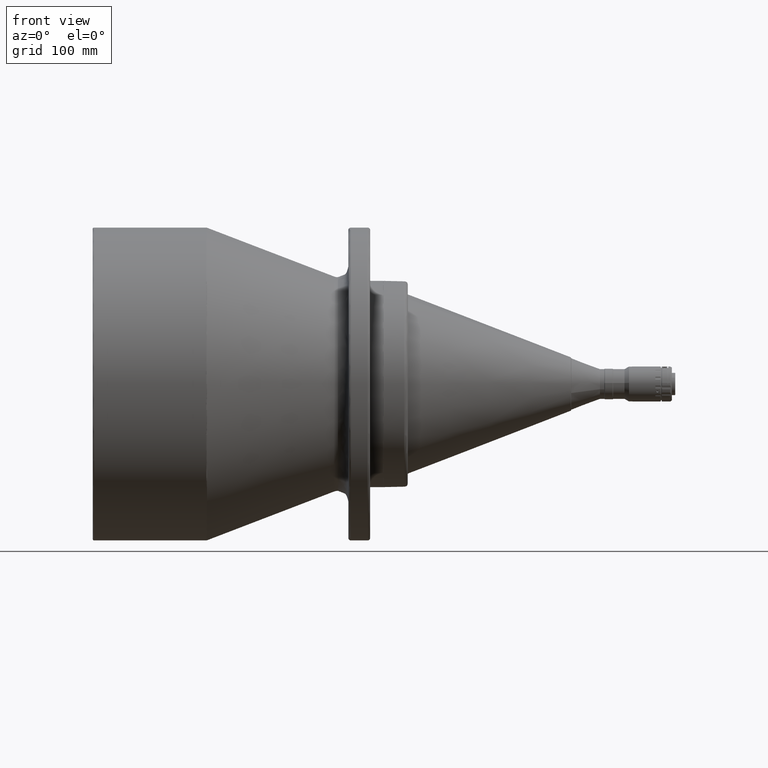
[diagram: clean part render]
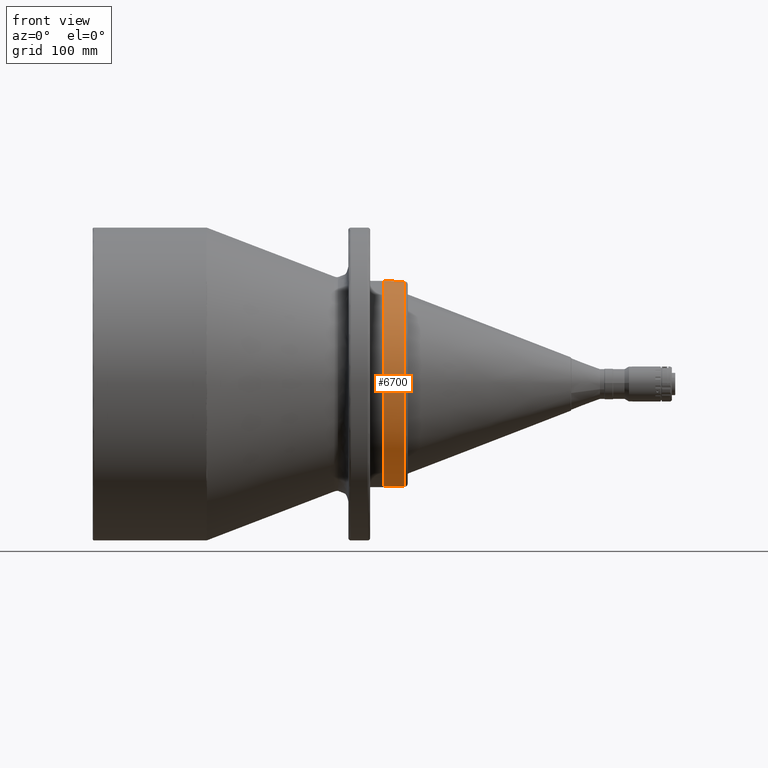
[diagram: same view with one face highlighted and labeled with its STEP entity id]
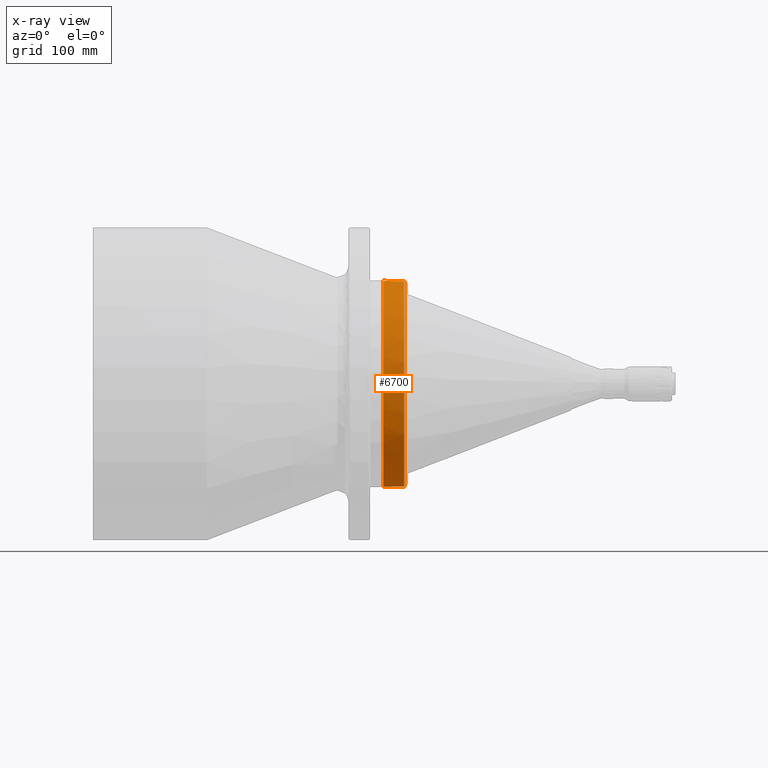
[diagram: x-ray of the same camera — body ghosted, the highlighted face saturated]
A machine part, front view. The second image highlights one B-rep face of the part: STEP entity #6700.
The next image is the same camera in x-ray: the body ghosted, the highlighted face saturated — about 0% of this face is hidden behind the body in this view.
In plain terms, the highlighted cylindrical surface (partial cylindrical patch) has radius 118 mm, axis along (-1, 0, 0).
Its self-contained STEP definition (entity closure, byte-faithful):
#287 = EDGE_CURVE ( 'NONE', #7406, #7819, #4778, .T. ) ;
#408 = CARTESIAN_POINT ( 'NONE',  ( 332.5000000000000000, -10.99077668998058000, -117.4870325940313300 ) ) ;
#471 = AXIS2_PLACEMENT_3D ( 'NONE', #7548, #5982, #2291 ) ;
#1368 = DIRECTION ( 'NONE',  ( 1.000000000000000000, 0.0000000000000000000, 0.0000000000000000000 ) ) ;
#1933 = CIRCLE ( 'NONE', #471, 118.0000000000000100 ) ;
#1944 = AXIS2_PLACEMENT_3D ( 'NONE', #2927, #1368, #2038 ) ;
#2038 = DIRECTION ( 'NONE',  ( 0.0000000000000000000, -0.09314217533881859200, -0.9956528185934858700 ) ) ;
#2218 = VERTEX_POINT ( 'NONE', #5398 ) ;
#2239 = EDGE_CURVE ( 'NONE', #2218, #5501, #5130, .T. ) ;
#2291 = DIRECTION ( 'NONE',  ( 0.0000000000000000000, 0.09314217533881857800, 0.9956528185934857600 ) ) ;
#2310 = CARTESIAN_POINT ( 'NONE',  ( 356.5000000005681500, -10.99077672009894800, -117.4870325911826500 ) ) ;
#2376 = EDGE_CURVE ( 'NONE', #2218, #7406, #8303, .T. ) ;
#2515 = CARTESIAN_POINT ( 'NONE',  ( 356.5000000000000600, 10.99077668998059400, 117.4870325940313300 ) ) ;
#2927 = CARTESIAN_POINT ( 'NONE',  ( 356.5000000015150500, 0.0000000000000000000, 0.0000000000000000000 ) ) ;
#2989 = FACE_OUTER_BOUND ( 'NONE', #4704, .T. ) ;
#3727 = VECTOR ( 'NONE', #4802, 1000.000000000000000 ) ;
#3870 = VECTOR ( 'NONE', #6191, 1000.000000000000000 ) ;
#4704 = EDGE_LOOP ( 'NONE', ( #6947, #8255, #7535, #8468 ) ) ;
#4778 = LINE ( 'NONE', #6376, #3727 ) ;
#4802 = DIRECTION ( 'NONE',  ( -1.000000000000000000, 0.0000000000000000000, 0.0000000000000000000 ) ) ;
#5130 = LINE ( 'NONE', #2515, #3870 ) ;
#5398 = CARTESIAN_POINT ( 'NONE',  ( 356.5000000005681500, 10.99077668997673900, 117.4870325939901200 ) ) ;
#5501 = VERTEX_POINT ( 'NONE', #6561 ) ;
#5899 = CARTESIAN_POINT ( 'NONE',  ( 356.5000000000000600, 0.0000000000000000000, 0.0000000000000000000 ) ) ;
#5982 = DIRECTION ( 'NONE',  ( -1.000000000000000000, 0.0000000000000000000, 0.0000000000000000000 ) ) ;
#6191 = DIRECTION ( 'NONE',  ( -1.000000000000000000, 0.0000000000000000000, 0.0000000000000000000 ) ) ;
#6376 = CARTESIAN_POINT ( 'NONE',  ( 356.5000000000000600, -10.99077668998058000, -117.4870325940313300 ) ) ;
#6561 = CARTESIAN_POINT ( 'NONE',  ( 332.5000000000000000, 10.99077668998059400, 117.4870325940313300 ) ) ;
#6630 = DIRECTION ( 'NONE',  ( 0.0000000000000000000, 0.09314217533881857800, 0.9956528185934857600 ) ) ;
#6700 = ADVANCED_FACE ( 'NONE', ( #2989 ), #8241, .T. ) ;
#6727 = EDGE_CURVE ( 'NONE', #7819, #5501, #1933, .T. ) ;
#6947 = ORIENTED_EDGE ( 'NONE', *, *, #287, .F. ) ;
#7406 = VERTEX_POINT ( 'NONE', #2310 ) ;
#7535 = ORIENTED_EDGE ( 'NONE', *, *, #2239, .T. ) ;
#7548 = CARTESIAN_POINT ( 'NONE',  ( 332.5000000000000000, 0.0000000000000000000, 0.0000000000000000000 ) ) ;
#7819 = VERTEX_POINT ( 'NONE', #408 ) ;
#8241 = CYLINDRICAL_SURFACE ( 'NONE', #8669, 118.0000000000000100 ) ;
#8255 = ORIENTED_EDGE ( 'NONE', *, *, #2376, .F. ) ;
#8303 = CIRCLE ( 'NONE', #1944, 117.9999999999172500 ) ;
#8468 = ORIENTED_EDGE ( 'NONE', *, *, #6727, .F. ) ;
#8669 = AXIS2_PLACEMENT_3D ( 'NONE', #5899, #8851, #6630 ) ;
#8851 = DIRECTION ( 'NONE',  ( -1.000000000000000000, 0.0000000000000000000, 0.0000000000000000000 ) ) ;